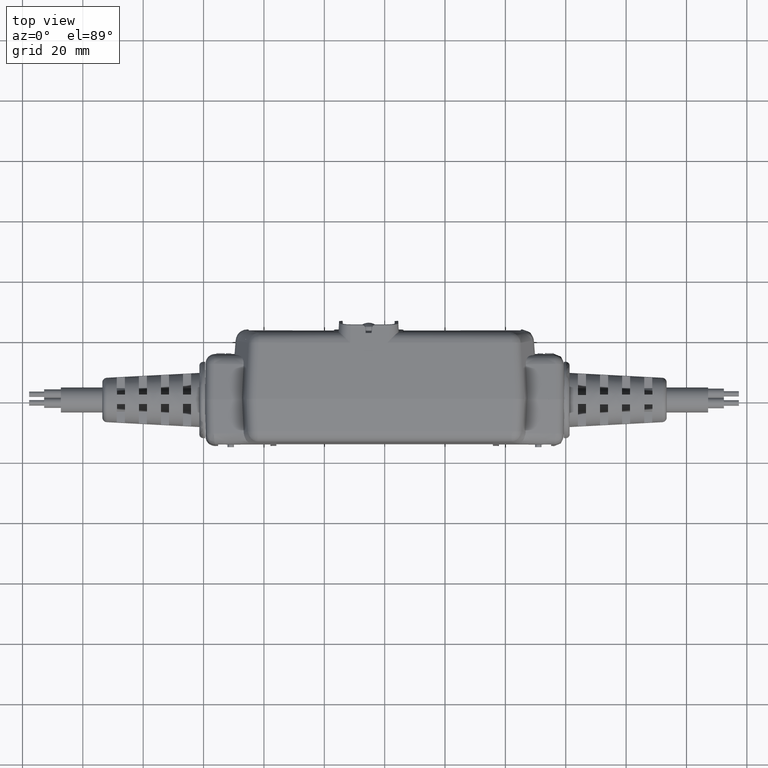
[diagram: clean part render]
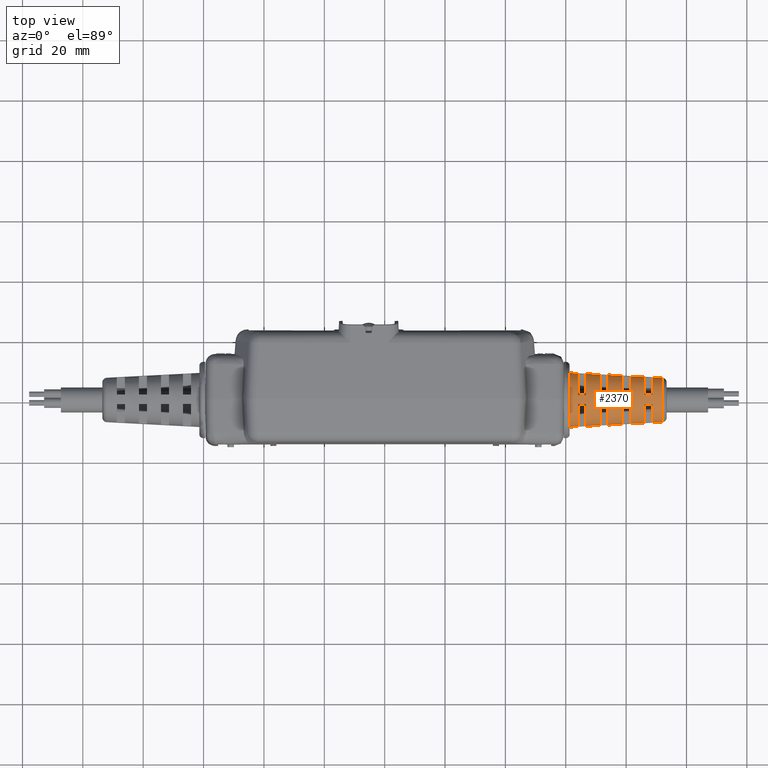
[diagram: same view with one face highlighted and labeled with its STEP entity id]
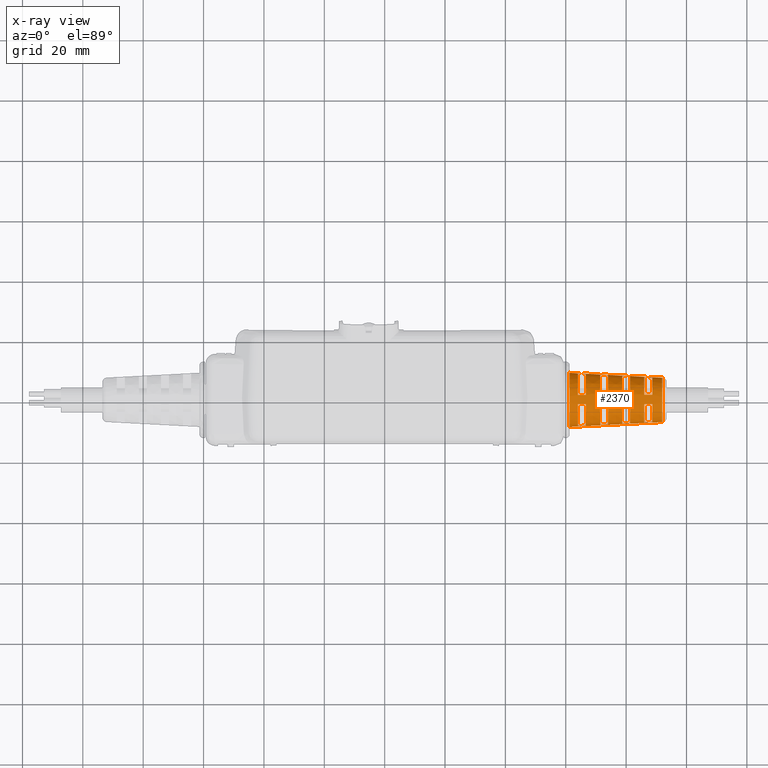
[diagram: x-ray of the same camera — body ghosted, the highlighted face saturated]
A machine part, top view. The second image highlights one B-rep face of the part: STEP entity #2370.
The next image is the same camera in x-ray: the body ghosted, the highlighted face saturated — about 0% of this face is hidden behind the body in this view.
In plain terms, the highlighted conical surface has half-angle 3 deg.
Its self-contained STEP definition (entity closure, byte-faithful):
#48 = CARTESIAN_POINT ( 'NONE',  ( 2.626074803149605952, 0.02195188560991327698, 5.902181154853083119E-16 ) ) ;
#217 = CARTESIAN_POINT ( 'NONE',  ( 3.385523622047243997, 0.02195188560991330126, -3.331255944365737550E-16 ) ) ;
#276 = DIRECTION ( 'NONE',  ( 0.000000000000000000, 1.000000000000000000, 5.370845286300962793E-18 ) ) ;
#423 = EDGE_CURVE ( 'NONE', #910, #15637, #10088, .T. ) ;
#434 = CARTESIAN_POINT ( 'NONE',  ( 3.385523622047243997, -0.04084338998063783560, 0.2953989048169199938 ) ) ;
#595 = CIRCLE ( 'NONE', #8810, 0.2964905952724240512 ) ;
#613 = VERTEX_POINT ( 'NONE', #16552 ) ;
#837 = AXIS2_PLACEMENT_3D ( 'NONE', #13288, #3886, #27090 ) ;
#882 = CARTESIAN_POINT ( 'NONE',  ( 3.202452759767177248, -0.2843680476511776245, 0.05708661417322907772 ) ) ;
#897 = CARTESIAN_POINT ( 'NONE',  ( 2.914263779527558551, -0.04084338998063784948, 0.3206054718941367954 ) ) ;
#910 = VERTEX_POINT ( 'NONE', #10158 ) ;
#984 = AXIS2_PLACEMENT_3D ( 'NONE', #7593, #5460, #14129 ) ;
#1035 = CARTESIAN_POINT ( 'NONE',  ( 3.202452754518295031, 0.08474716120046450751, 0.3052008135077254880 ) ) ;
#1126 = CARTESIAN_POINT ( 'NONE',  ( 2.896322480350852935, -0.3006740724700001643, 0.05708661417322901527 ) ) ;
#1273 = EDGE_CURVE ( 'NONE', #8569, #4271, #23755, .T. ) ;
#1431 = AXIS2_PLACEMENT_3D ( 'NONE', #7691, #14941, #5259 ) ;
#1492 = CARTESIAN_POINT ( 'NONE',  ( 2.626074803149605952, 0.3589515708192727028, 0.05708661417322892506 ) ) ;
#1497 = CARTESIAN_POINT ( 'NONE',  ( 2.413279527559054838, 0.3749046415154250189, 5.815717168840343192E-16 ) ) ;
#1620 = EDGE_CURVE ( 'NONE', #19480, #7408, #18230, .T. ) ;
#1664 = ORIENTED_EDGE ( 'NONE', *, *, #7114, .T. ) ;
#1715 = CARTESIAN_POINT ( 'NONE',  ( 2.843341803476631569, 0.3473971988524146015, 0.05708661417322897363 ) ) ;
#1807 = AXIS2_PLACEMENT_3D ( 'NONE', #20977, #7348, #276 ) ;
#1870 = EDGE_CURVE ( 'NONE', #4040, #12834, #18623, .T. ) ;
#2161 = CARTESIAN_POINT ( 'NONE',  ( 2.896322480350852935, 0.3445778436898266350, 0.05708661417322902915 ) ) ;
#2211 = ORIENTED_EDGE ( 'NONE', *, *, #423, .T. ) ;
#2370 = ADVANCED_FACE ( 'NONE', ( #22230, #7998, #17719, #3734, #29253, #29103, #13624, #20281, #8927 ), #11053, .T. ) ;
#2380 = EDGE_LOOP ( 'NONE', ( #1664, #18973, #23659, #9239 ) ) ;
#2519 = CARTESIAN_POINT ( 'NONE',  ( 3.490641703237432392, 0.3128948224031821712, 0.05708661417322914711 ) ) ;
#2580 = VERTEX_POINT ( 'NONE', #5985 ) ;
#2753 = VECTOR ( 'NONE', #11327, 39.37007874015748143 ) ;
#2791 = B_SPLINE_CURVE_WITH_KNOTS ( 'NONE', 3,
 ( #28367, #5293, #3048, #28526, #16968, #5575, #18972 ),
 .UNSPECIFIED., .F., .F.,
 ( 4, 3, 4 ),
 ( 0.004564592662278818720, 0.005848520266768853816, 0.007238381809362548665 ),
 .UNSPECIFIED. ) ;
#2825 = CARTESIAN_POINT ( 'NONE',  ( 2.608404758468685358, 0.3598908112224169509, 0.05708661417322895282 ) ) ;
#3048 = CARTESIAN_POINT ( 'NONE',  ( 3.130985799523999802, 0.3320809869180481599, 0.05708661417322904996 ) ) ;
#3189 = B_SPLINE_CURVE_WITH_KNOTS ( 'NONE', 3,
 ( #28755, #5520, #5225, #434 ),
 .UNSPECIFIED., .F., .F.,
 ( 4, 4 ),
 ( 0.01431265582675728121, 0.01698648894039770513 ),
 .UNSPECIFIED. ) ;
#3391 = CARTESIAN_POINT ( 'NONE',  ( 2.555996085075325386, -0.3187723603548476281, 0.05708661417322890425 ) ) ;
#3398 = CARTESIAN_POINT ( 'NONE',  ( 2.914263779527558551, 0.3436228879200250996, 0.05708661417322900139 ) ) ;
#3636 = CARTESIAN_POINT ( 'NONE',  ( 3.202452754518295031, -0.04084338998063784254, 0.3052008135077254880 ) ) ;
#3698 = VERTEX_POINT ( 'NONE', #1492 ) ;
#3713 = LINE ( 'NONE', #17852, #2753 ) ;
#3720 = CARTESIAN_POINT ( 'NONE',  ( 2.914263779527558551, -0.04084338998063784948, 0.3206054718941367954 ) ) ;
#3734 = FACE_BOUND ( 'NONE', #16963, .T. ) ;
#3817 = DIRECTION ( 'NONE',  ( -1.000000000000000000, -3.564050570092638275E-17, -2.526667914707950258E-16 ) ) ;
#3853 = EDGE_LOOP ( 'NONE', ( #12959, #16419, #27923, #17958 ) ) ;
#3886 = DIRECTION ( 'NONE',  ( 1.000000000000000000, 3.564050570092638275E-17, 2.526667914707950258E-16 ) ) ;
#3932 = CIRCLE ( 'NONE', #18491, 0.3322062905239770991 ) ;
#3933 = CARTESIAN_POINT ( 'NONE',  ( 2.809145669291337910, -0.04084338998063786336, 0.3262173705172797256 ) ) ;
#4040 = VERTEX_POINT ( 'NONE', #4421 ) ;
#4050 = EDGE_CURVE ( 'NONE', #14646, #7408, #13123, .T. ) ;
#4185 = VERTEX_POINT ( 'NONE', #26668 ) ;
#4206 = DIRECTION ( 'NONE',  ( -1.000000000000000000, -3.564050570092638275E-17, -2.526667914707950258E-16 ) ) ;
#4271 = VERTEX_POINT ( 'NONE', #25591 ) ;
#4292 = CARTESIAN_POINT ( 'NONE',  ( 3.621529553286976011, 0.02195188560991331167, 8.417364732568794891E-16 ) ) ;
#4373 = EDGE_LOOP ( 'NONE', ( #19758, #20406, #23711, #20314 ) ) ;
#4421 = CARTESIAN_POINT ( 'NONE',  ( 3.490641703237432392, -0.2689910511833555895, 0.05708661417322914711 ) ) ;
#4431 = EDGE_CURVE ( 'NONE', #4271, #6186, #18291, .T. ) ;
#4585 = CARTESIAN_POINT ( 'NONE',  ( 2.626074803149605952, -0.03789063407512605758, 0.3365212358629336431 ) ) ;
#5039 = AXIS2_PLACEMENT_3D ( 'NONE', #27031, #3817, #10966 ) ;
#5225 = CARTESIAN_POINT ( 'NONE',  ( 3.420563038083134000, -0.04084338998063778703, 0.2935215338091448634 ) ) ;
#5259 = DIRECTION ( 'NONE',  ( 0.000000000000000000, -1.000000000000000000, -5.370845286300814882E-18 ) ) ;
#5293 = CARTESIAN_POINT ( 'NONE',  ( 3.114160225923063852, 0.3329775491357575001, 0.05708661417322908466 ) ) ;
#5368 = CARTESIAN_POINT ( 'NONE',  ( 2.626074803149605952, -0.3150477995994456770, 0.05708661417322892506 ) ) ;
#5383 = CARTESIAN_POINT ( 'NONE',  ( 3.097334645669290953, 0.08474716120046450751, 0.3108231521124353303 ) ) ;
#5460 = DIRECTION ( 'NONE',  ( 1.000000000000000000, 3.564050570092638275E-17, 2.526667914707950258E-16 ) ) ;
#5501 = DIRECTION ( 'NONE',  ( 0.000000000000000000, -1.000000000000000000, -5.370845286300805637E-18 ) ) ;
#5520 = CARTESIAN_POINT ( 'NONE',  ( 3.455602412804182233, -0.04084338998063786336, 0.2916433915194030502 ) ) ;
#5575 = CARTESIAN_POINT ( 'NONE',  ( 3.184238970102238664, 0.3292427978268241406, 0.05708661417322909853 ) ) ;
#5700 = CARTESIAN_POINT ( 'NONE',  ( 2.809145669291337910, -0.04084338998063786336, 0.3262173705172797256 ) ) ;
#5763 = CARTESIAN_POINT ( 'NONE',  ( 2.809145669291337910, -0.3053127442325708762, 0.05708661417322897363 ) ) ;
#5846 = EDGE_CURVE ( 'NONE', #7063, #11022, #15443, .T. ) ;
#5985 = CARTESIAN_POINT ( 'NONE',  ( 2.914263779527558551, -0.2997191167001984624, 0.05708661417322900139 ) ) ;
#6186 = VERTEX_POINT ( 'NONE', #27542 ) ;
#6197 = CARTESIAN_POINT ( 'NONE',  ( 3.418626765165302395, 0.3167400482306491627, 0.05708661417322911935 ) ) ;
#6251 = EDGE_CURVE ( 'NONE', #24812, #28107, #18259, .T. ) ;
#6323 = DIRECTION ( 'NONE',  ( 0.000000000000000000, -1.000000000000000000, -5.370845286300814882E-18 ) ) ;
#6340 = DIRECTION ( 'NONE',  ( 0.000000000000000000, 1.000000000000000000, 5.370845286300653874E-18 ) ) ;
#6380 = DIRECTION ( 'NONE',  ( 1.000000000000000000, 3.564050570092638275E-17, 2.526667914707950258E-16 ) ) ;
#6410 = CARTESIAN_POINT ( 'NONE',  ( 3.202452759767177248, 0.3282718188710042062, 0.05708661417322907772 ) ) ;
#6523 = DIRECTION ( 'NONE',  ( 0.000000000000000000, 1.000000000000000000, 5.370845286300751711E-18 ) ) ;
#6624 = DIRECTION ( 'NONE',  ( 0.000000000000000000, 1.000000000000000000, 5.370845286300805637E-18 ) ) ;
#6834 = CARTESIAN_POINT ( 'NONE',  ( 3.202452755905511150, 0.02195188560991329779, 7.358496834826484065E-16 ) ) ;
#6854 = VERTEX_POINT ( 'NONE', #19075 ) ;
#6974 = CARTESIAN_POINT ( 'NONE',  ( 2.520956692913385311, -0.3206340173400767934, 0.05708661417322889731 ) ) ;
#7063 = VERTEX_POINT ( 'NONE', #16578 ) ;
#7114 = EDGE_CURVE ( 'NONE', #24812, #3698, #10223, .T. ) ;
#7348 = DIRECTION ( 'NONE',  ( 1.000000000000000000, 3.564050570092638275E-17, 2.526667914707950258E-16 ) ) ;
#7395 = EDGE_CURVE ( 'NONE', #2580, #19584, #27198, .T. ) ;
#7408 = VERTEX_POINT ( 'NONE', #19716 ) ;
#7492 = CARTESIAN_POINT ( 'NONE',  ( 2.555695337620218499, 0.3626920096729623344, 0.05708661417322890425 ) ) ;
#7593 = CARTESIAN_POINT ( 'NONE',  ( 2.809145669291337910, 0.02195188560991328044, 6.364740438451191992E-16 ) ) ;
#7657 = AXIS2_PLACEMENT_3D ( 'NONE', #13755, #4206, #6323 ) ;
#7691 = CARTESIAN_POINT ( 'NONE',  ( 2.413279527559054838, 0.02195188560991327004, 5.364518159617001705E-16 ) ) ;
#7931 = EDGE_CURVE ( 'NONE', #6854, #24005, #27571, .T. ) ;
#7944 = CARTESIAN_POINT ( 'NONE',  ( 2.520956692913385311, -0.3206340173400767934, 0.05708661417322889731 ) ) ;
#7998 = FACE_BOUND ( 'NONE', #26388, .T. ) ;
#8048 = ORIENTED_EDGE ( 'NONE', *, *, #17925, .T. ) ;
#8094 = CARTESIAN_POINT ( 'NONE',  ( 3.132374051356489719, 0.08474716120046450751, 0.3089497137651929237 ) ) ;
#8287 = CARTESIAN_POINT ( 'NONE',  ( 2.844185070486665357, -0.04084338998063782866, 0.3243473205878637522 ) ) ;
#8367 = ORIENTED_EDGE ( 'NONE', *, *, #15299, .F. ) ;
#8489 = CARTESIAN_POINT ( 'NONE',  ( 3.385523622047243997, 0.3185069025726440239, 0.05708661417322911935 ) ) ;
#8524 = CARTESIAN_POINT ( 'NONE',  ( 2.809145669291337910, 0.08474716120046449364, 0.3262173705172797256 ) ) ;
#8569 = VERTEX_POINT ( 'NONE', #22897 ) ;
#8706 = DIRECTION ( 'NONE',  ( 0.000000000000000000, 1.000000000000000000, 8.935492649864257044E-16 ) ) ;
#8756 = CARTESIAN_POINT ( 'NONE',  ( 3.455602412804182233, 0.08474716120046449364, 0.2916433915194030502 ) ) ;
#8810 = AXIS2_PLACEMENT_3D ( 'NONE', #9561, #18961, #16651 ) ;
#8849 = ORIENTED_EDGE ( 'NONE', *, *, #19445, .T. ) ;
#8927 = FACE_OUTER_BOUND ( 'NONE', #17629, .T. ) ;
#9139 = CARTESIAN_POINT ( 'NONE',  ( 3.490641743697204369, -0.04084338998063783560, 0.2897644320716417088 ) ) ;
#9239 = ORIENTED_EDGE ( 'NONE', *, *, #6251, .F. ) ;
#9244 = CARTESIAN_POINT ( 'NONE',  ( 3.385523622047243997, -0.2746031313528173312, 0.05708661417322911935 ) ) ;
#9545 = DIRECTION ( 'NONE',  ( 0.000000000000000000, 1.000000000000000000, 5.370845286300918882E-18 ) ) ;
#9561 = CARTESIAN_POINT ( 'NONE',  ( 3.490641732283463750, 0.02195188560991330820, 8.086654674813184046E-16 ) ) ;
#9633 = CIRCLE ( 'NONE', #18838, 0.3473096347897984271 ) ;
#9712 = CARTESIAN_POINT ( 'NONE',  ( 2.591035457884470095, 0.08179440529495271561, 0.3383863788046749255 ) ) ;
#9851 = CARTESIAN_POINT ( 'NONE',  ( 2.809145669291337910, -0.3053127442325708762, 0.05708661417322897363 ) ) ;
#9972 = VERTEX_POINT ( 'NONE', #25794 ) ;
#10088 = B_SPLINE_CURVE_WITH_KNOTS ( 'NONE', 3,
 ( #5368, #21442, #3391, #7944 ),
 .UNSPECIFIED., .F., .F.,
 ( 4, 4 ),
 ( 0.000000000000000000, 0.002673767520262207951 ),
 .UNSPECIFIED. ) ;
#10119 = DIRECTION ( 'NONE',  ( 0.000000000000000000, -1.000000000000000000, -5.370845286300918882E-18 ) ) ;
#10158 = CARTESIAN_POINT ( 'NONE',  ( 2.626074803149605952, -0.3150477995994456770, 0.05708661417322892506 ) ) ;
#10223 = B_SPLINE_CURVE_WITH_KNOTS ( 'NONE', 3,
 ( #14025, #28435, #7492, #16729, #20840, #2825, #12045 ),
 .UNSPECIFIED., .F., .F.,
 ( 4, 3, 4 ),
 ( 0.004072245444595262026, 0.005397654768774186665, 0.006746012964514574994 ),
 .UNSPECIFIED. ) ;
#10403 = CARTESIAN_POINT ( 'NONE',  ( 3.167413421650583150, 0.08474716120046450751, 0.3070756133206844485 ) ) ;
#10881 = CARTESIAN_POINT ( 'NONE',  ( 3.385523622047243997, 0.08474716120046450751, 0.2953989048169199938 ) ) ;
#10966 = DIRECTION ( 'NONE',  ( 0.000000000000000000, -1.000000000000000000, -5.370845286300751711E-18 ) ) ;
#11015 = AXIS2_PLACEMENT_3D ( 'NONE', #217, #23336, #21058 ) ;
#11022 = VERTEX_POINT ( 'NONE', #12334 ) ;
#11042 = CARTESIAN_POINT ( 'NONE',  ( 3.097334645669290953, 0.02195188560991329432, 7.092898278437891972E-16 ) ) ;
#11053 = CONICAL_SURFACE ( 'NONE', #7657, 0.3529527559055117836, 0.05235987755983004949 ) ;
#11201 = AXIS2_PLACEMENT_3D ( 'NONE', #20459, #13652, #29416 ) ;
#11212 = DIRECTION ( 'NONE',  ( 0.000000000000000000, -1.000000000000000000, -5.370845286300707029E-18 ) ) ;
#11237 = CARTESIAN_POINT ( 'NONE',  ( 2.860439861506308468, 0.3464873702248758569, 0.05708661417322898751 ) ) ;
#11318 = EDGE_CURVE ( 'NONE', #19584, #26675, #3932, .T. ) ;
#11327 = DIRECTION ( 'NONE',  ( -0.9986295347545738332, -0.05233595624294404280, -2.526016087383024834E-16 ) ) ;
#11704 = CARTESIAN_POINT ( 'NONE',  ( 2.591035457884470095, -0.03789063407512605758, 0.3383863788046749255 ) ) ;
#12045 = CARTESIAN_POINT ( 'NONE',  ( 2.626074803149605952, 0.3589515708192727028, 0.05708661417322892506 ) ) ;
#12219 = ORIENTED_EDGE ( 'NONE', *, *, #12997, .T. ) ;
#12334 = CARTESIAN_POINT ( 'NONE',  ( 2.809145669291337910, 0.08474716120046449364, 0.3262173705172797256 ) ) ;
#12396 = EDGE_LOOP ( 'NONE', ( #19628, #27092, #14487, #8048 ) ) ;
#12439 = CARTESIAN_POINT ( 'NONE',  ( 3.621529553286976011, 0.3115829408483472007, 7.301666641009245760E-16 ) ) ;
#12559 = ORIENTED_EDGE ( 'NONE', *, *, #7931, .F. ) ;
#12629 = DIRECTION ( 'NONE',  ( -1.000000000000000000, -3.564050570092638275E-17, -2.526667914707950258E-16 ) ) ;
#12824 = ORIENTED_EDGE ( 'NONE', *, *, #25751, .T. ) ;
#12834 = VERTEX_POINT ( 'NONE', #9244 ) ;
#12867 = AXIS2_PLACEMENT_3D ( 'NONE', #4292, #29933, #8706 ) ;
#12930 = VERTEX_POINT ( 'NONE', #15082 ) ;
#12959 = ORIENTED_EDGE ( 'NONE', *, *, #19338, .T. ) ;
#12997 = EDGE_CURVE ( 'NONE', #15413, #24005, #22210, .T. ) ;
#13003 = DIRECTION ( 'NONE',  ( 0.000000000000000000, -1.000000000000000000, -5.370845286300653874E-18 ) ) ;
#13123 = CIRCLE ( 'NONE', #21329, 0.3115939395382456567 ) ;
#13198 = CARTESIAN_POINT ( 'NONE',  ( 2.878381174282580890, 0.3455326699921857925, 0.05708661417322899445 ) ) ;
#13288 = CARTESIAN_POINT ( 'NONE',  ( 3.490641732283463750, 0.02195188560991330820, 8.086654674813184046E-16 ) ) ;
#13624 = FACE_BOUND ( 'NONE', #2380, .T. ) ;
#13629 = EDGE_LOOP ( 'NONE', ( #24306, #16052, #12824, #28059 ) ) ;
#13652 = DIRECTION ( 'NONE',  ( 1.000000000000000000, 3.564050570092632112E-17, -3.255743671881410339E-16 ) ) ;
#13755 = CARTESIAN_POINT ( 'NONE',  ( 2.413279527559054838, 0.02195188560991327004, 5.364518159617001705E-16 ) ) ;
#13769 = AXIS2_PLACEMENT_3D ( 'NONE', #19535, #22234, #13003 ) ;
#13815 = ORIENTED_EDGE ( 'NONE', *, *, #26128, .F. ) ;
#13822 = CARTESIAN_POINT ( 'NONE',  ( 2.555996087393977323, -0.03789063407512603676, 0.3402510479070747773 ) ) ;
#14025 = CARTESIAN_POINT ( 'NONE',  ( 2.520956692913385311, 0.3645377885599033196, 0.05708661417322889731 ) ) ;
#14092 = CARTESIAN_POINT ( 'NONE',  ( 2.555996087393977323, 0.08179440529495268786, 0.3402510479070747773 ) ) ;
#14125 = CARTESIAN_POINT ( 'NONE',  ( 2.520956692913385311, 0.02195188560991327351, 5.636582598464492011E-16 ) ) ;
#14129 = DIRECTION ( 'NONE',  ( 0.000000000000000000, 1.000000000000000000, 5.370845286300707029E-18 ) ) ;
#14144 = CIRCLE ( 'NONE', #20911, 0.3171029462581558267 ) ;
#14234 = CARTESIAN_POINT ( 'NONE',  ( 2.626074803149605952, 0.08179440529495268786, 0.3365212358629336431 ) ) ;
#14259 = VERTEX_POINT ( 'NONE', #2519 ) ;
#14487 = ORIENTED_EDGE ( 'NONE', *, *, #26878, .F. ) ;
#14513 = VERTEX_POINT ( 'NONE', #9139 ) ;
#14632 = CARTESIAN_POINT ( 'NONE',  ( 3.132374046423807901, -0.2881033775770672212, 0.05708661417322904996 ) ) ;
#14640 = CARTESIAN_POINT ( 'NONE',  ( 2.626074803149605952, 0.02195188560991327698, 5.902181154853083119E-16 ) ) ;
#14646 = VERTEX_POINT ( 'NONE', #25791 ) ;
#14663 = CARTESIAN_POINT ( 'NONE',  ( 2.879224441119970113, -0.04084338998063786336, 0.3224766979157941971 ) ) ;
#14766 = CARTESIAN_POINT ( 'NONE',  ( 2.879224441119970113, 0.08474716120046449364, 0.3224766979157943636 ) ) ;
#14854 = EDGE_CURVE ( 'NONE', #14513, #4185, #3189, .T. ) ;
#14938 = DIRECTION ( 'NONE',  ( -0.9986295347545738332, 0.05233595624294397342, -2.456301259611957908E-16 ) ) ;
#14941 = DIRECTION ( 'NONE',  ( -1.000000000000000000, -3.564050570092638275E-17, -2.526667914707950258E-16 ) ) ;
#15066 = EDGE_CURVE ( 'NONE', #14646, #25833, #26335, .T. ) ;
#15082 = CARTESIAN_POINT ( 'NONE',  ( 2.914263779527558551, 0.08474716120046450751, 0.3206054718941367954 ) ) ;
#15210 = CARTESIAN_POINT ( 'NONE',  ( 3.097334645669290953, -0.2899702152547736222, 0.05708661417322904302 ) ) ;
#15299 = EDGE_CURVE ( 'NONE', #22571, #21685, #18142, .T. ) ;
#15400 = B_SPLINE_CURVE_WITH_KNOTS ( 'NONE', 3,
 ( #21199, #14092, #9712, #14234 ),
 .UNSPECIFIED., .F., .F.,
 ( 4, 4 ),
 ( 0.01614936260241600294, 0.01882314065659024260 ),
 .UNSPECIFIED. ) ;
#15413 = VERTEX_POINT ( 'NONE', #12439 ) ;
#15443 = CIRCLE ( 'NONE', #984, 0.3322062905239770991 ) ;
#15478 = CIRCLE ( 'NONE', #24190, 0.3266972838040668736 ) ;
#15620 = EDGE_CURVE ( 'NONE', #28107, #21656, #15400, .T. ) ;
#15633 = CARTESIAN_POINT ( 'NONE',  ( 2.626074803149605952, 0.08179440529495268786, 0.3365212358629336431 ) ) ;
#15637 = VERTEX_POINT ( 'NONE', #6974 ) ;
#15692 = CIRCLE ( 'NONE', #13769, 0.3266972838040668736 ) ;
#16052 = ORIENTED_EDGE ( 'NONE', *, *, #1870, .T. ) ;
#16095 = DIRECTION ( 'NONE',  ( 0.000000000000000000, -1.000000000000000000, -5.370845286300962793E-18 ) ) ;
#16124 = B_SPLINE_CURVE_WITH_KNOTS ( 'NONE', 3,
 ( #24994, #27605, #1715, #11237, #13198, #2161, #22270 ),
 .UNSPECIFIED., .F., .F.,
 ( 4, 3, 4 ),
 ( 0.004278539691087743929, 0.005583254988275264744, 0.006952317205210082826 ),
 .UNSPECIFIED. ) ;
#16126 = CARTESIAN_POINT ( 'NONE',  ( 3.202452754518295031, 0.08474716120046450751, 0.3052008135077254880 ) ) ;
#16419 = ORIENTED_EDGE ( 'NONE', *, *, #29291, .F. ) ;
#16450 = VERTEX_POINT ( 'NONE', #897 ) ;
#16552 = CARTESIAN_POINT ( 'NONE',  ( 2.520956692913385311, -0.03789063407512605758, 0.3421152660370029297 ) ) ;
#16578 = CARTESIAN_POINT ( 'NONE',  ( 2.809145669291337910, 0.3492165154523975135, 0.05708661417322897363 ) ) ;
#16651 = DIRECTION ( 'NONE',  ( 0.000000000000000000, -1.000000000000000000, -5.370845286300866496E-18 ) ) ;
#16667 = EDGE_CURVE ( 'NONE', #19480, #25833, #14144, .T. ) ;
#16700 = CARTESIAN_POINT ( 'NONE',  ( 3.621529553286976011, -0.2676791696285205635, 6.873685354927218632E-16 ) ) ;
#16707 = ORIENTED_EDGE ( 'NONE', *, *, #23133, .F. ) ;
#16729 = CARTESIAN_POINT ( 'NONE',  ( 2.573064651835245797, 0.3617689670772226695, 0.05708661417322891812 ) ) ;
#16963 = EDGE_LOOP ( 'NONE', ( #8849, #2211, #22900, #24900 ) ) ;
#16968 = CARTESIAN_POINT ( 'NONE',  ( 3.166025172199770310, 0.3302136222732925952, 0.05708661417322907078 ) ) ;
#17081 = ORIENTED_EDGE ( 'NONE', *, *, #16667, .T. ) ;
#17138 = VERTEX_POINT ( 'NONE', #22122 ) ;
#17170 = CARTESIAN_POINT ( 'NONE',  ( 2.520956692913385311, 0.08179440529495268786, 0.3421152660370029297 ) ) ;
#17314 = AXIS2_PLACEMENT_3D ( 'NONE', #11042, #20278, #6624 ) ;
#17438 = CARTESIAN_POINT ( 'NONE',  ( 3.472153920400578020, 0.3138822009672473379, 0.05708661417322918180 ) ) ;
#17554 = VERTEX_POINT ( 'NONE', #16700 ) ;
#17629 = EDGE_LOOP ( 'NONE', ( #25249, #12219, #12559, #13815 ) ) ;
#17651 = ORIENTED_EDGE ( 'NONE', *, *, #15066, .F. ) ;
#17719 = FACE_BOUND ( 'NONE', #13629, .T. ) ;
#17849 = EDGE_CURVE ( 'NONE', #9972, #21685, #2791, .T. ) ;
#17852 = CARTESIAN_POINT ( 'NONE',  ( 2.413279527559054838, -0.3310008702955985482, 5.345561613163581449E-16 ) ) ;
#17925 = EDGE_CURVE ( 'NONE', #16450, #2580, #15478, .T. ) ;
#17958 = ORIENTED_EDGE ( 'NONE', *, *, #1273, .F. ) ;
#18142 = CIRCLE ( 'NONE', #5039, 0.3115939395382456567 ) ;
#18230 = B_SPLINE_CURVE_WITH_KNOTS ( 'NONE', 3,
 ( #15210, #14632, #23863, #882 ),
 .UNSPECIFIED., .F., .F.,
 ( 4, 4 ),
 ( 0.000000000000000000, 0.002673789147832137791 ),
 .UNSPECIFIED. ) ;
#18259 = CIRCLE ( 'NONE', #1807, 0.3473096347897984271 ) ;
#18290 = ORIENTED_EDGE ( 'NONE', *, *, #4050, .T. ) ;
#18291 = B_SPLINE_CURVE_WITH_KNOTS ( 'NONE', 3,
 ( #10881, #24633, #8756, #25257 ),
 .UNSPECIFIED., .F., .F.,
 ( 4, 4 ),
 ( 0.01457859515390049973, 0.01725242827885833941 ),
 .UNSPECIFIED. ) ;
#18366 = CARTESIAN_POINT ( 'NONE',  ( 3.097334645669290953, -0.2899702152547736222, 0.05708661417322904302 ) ) ;
#18491 = AXIS2_PLACEMENT_3D ( 'NONE', #22698, #29724, #11212 ) ;
#18623 = B_SPLINE_CURVE_WITH_KNOTS ( 'NONE', 3,
 ( #23526, #19025, #20667, #20965 ),
 .UNSPECIFIED., .F., .F.,
 ( 4, 4 ),
 ( 0.000000000000000000, 0.002673801724296943558 ),
 .UNSPECIFIED. ) ;
#18778 = VERTEX_POINT ( 'NONE', #27098 ) ;
#18838 = AXIS2_PLACEMENT_3D ( 'NONE', #14125, #23353, #16095 ) ;
#18845 = CIRCLE ( 'NONE', #26097, 0.3418006280698881461 ) ;
#18961 = DIRECTION ( 'NONE',  ( -1.000000000000000000, -3.564050570092638275E-17, -2.526667914707950258E-16 ) ) ;
#18972 = CARTESIAN_POINT ( 'NONE',  ( 3.202452759767177248, 0.3282718188710042062, 0.05708661417322907772 ) ) ;
#18973 = ORIENTED_EDGE ( 'NONE', *, *, #21344, .F. ) ;
#19025 = CARTESIAN_POINT ( 'NONE',  ( 3.455602377805194969, -0.2708623993669860286, 0.05708661417322914017 ) ) ;
#19056 = EDGE_CURVE ( 'NONE', #11022, #12930, #21172, .T. ) ;
#19071 = VERTEX_POINT ( 'NONE', #3398 ) ;
#19075 = CARTESIAN_POINT ( 'NONE',  ( 2.413279527559054838, -0.3310008702955985482, 5.345561613163581449E-16 ) ) ;
#19338 = EDGE_CURVE ( 'NONE', #8569, #14259, #23633, .T. ) ;
#19445 = EDGE_CURVE ( 'NONE', #18778, #910, #18845, .T. ) ;
#19480 = VERTEX_POINT ( 'NONE', #18366 ) ;
#19535 = CARTESIAN_POINT ( 'NONE',  ( 2.914263779527558551, 0.02195188560991328391, 6.630338994839783099E-16 ) ) ;
#19578 = CARTESIAN_POINT ( 'NONE',  ( 2.826243739353848206, -0.3044031417616101520, 0.05708661417322900139 ) ) ;
#19584 = VERTEX_POINT ( 'NONE', #9851 ) ;
#19628 = ORIENTED_EDGE ( 'NONE', *, *, #7395, .T. ) ;
#19716 = CARTESIAN_POINT ( 'NONE',  ( 3.202452759767177248, -0.2843680476511776245, 0.05708661417322907772 ) ) ;
#19758 = ORIENTED_EDGE ( 'NONE', *, *, #28359, .T. ) ;
#20139 = CARTESIAN_POINT ( 'NONE',  ( 2.914263779527558551, 0.02195188560991328391, 6.630338994839783099E-16 ) ) ;
#20171 = CARTESIAN_POINT ( 'NONE',  ( 3.097334645669290953, -0.04084338998063784948, 0.3108231521124353303 ) ) ;
#20278 = DIRECTION ( 'NONE',  ( 1.000000000000000000, 3.564050570092638275E-17, 2.526667914707950258E-16 ) ) ;
#20281 = FACE_BOUND ( 'NONE', #3853, .T. ) ;
#20314 = ORIENTED_EDGE ( 'NONE', *, *, #5846, .F. ) ;
#20406 = ORIENTED_EDGE ( 'NONE', *, *, #21072, .F. ) ;
#20459 = CARTESIAN_POINT ( 'NONE',  ( 3.385523622047243997, 0.02195188560991330126, 7.729537147291759546E-16 ) ) ;
#20482 = CARTESIAN_POINT ( 'NONE',  ( 2.844185070486665357, 0.08474716120046449364, 0.3243473205878635302 ) ) ;
#20667 = CARTESIAN_POINT ( 'NONE',  ( 3.420563016734965434, -0.2727330803672317061, 0.05708661417322912629 ) ) ;
#20840 = CARTESIAN_POINT ( 'NONE',  ( 2.590734707982180751, 0.3608299424104560171, 0.05708661417322892506 ) ) ;
#20911 = AXIS2_PLACEMENT_3D ( 'NONE', #23686, #12629, #5501 ) ;
#20938 = CARTESIAN_POINT ( 'NONE',  ( 2.520956692913385311, -0.03789063407512605758, 0.3421152660370029297 ) ) ;
#20965 = CARTESIAN_POINT ( 'NONE',  ( 3.385523622047243997, -0.2746031313528173312, 0.05708661417322911935 ) ) ;
#20977 = CARTESIAN_POINT ( 'NONE',  ( 2.520956692913385311, 0.02195188560991327351, 5.636582598464492011E-16 ) ) ;
#21013 = B_SPLINE_CURVE_WITH_KNOTS ( 'NONE', 3,
 ( #5383, #8094, #10403, #1035 ),
 .UNSPECIFIED., .F., .F.,
 ( 4, 4 ),
 ( 0.01530768729493700055, 0.01798150361759525556 ),
 .UNSPECIFIED. ) ;
#21058 = DIRECTION ( 'NONE',  ( 0.000000000000000000, 9.893916162002531690E-17, 1.000000000000000000 ) ) ;
#21060 = AXIS2_PLACEMENT_3D ( 'NONE', #14640, #21894, #10119 ) ;
#21072 = EDGE_CURVE ( 'NONE', #12930, #19071, #15692, .T. ) ;
#21172 = B_SPLINE_CURVE_WITH_KNOTS ( 'NONE', 3,
 ( #8524, #20482, #14766, #25018 ),
 .UNSPECIFIED., .F., .F.,
 ( 4, 4 ),
 ( 0.01659822179200024991, 0.01927202400062186932 ),
 .UNSPECIFIED. ) ;
#21199 = CARTESIAN_POINT ( 'NONE',  ( 2.520956692913385311, 0.08179440529495268786, 0.3421152660370029297 ) ) ;
#21329 = AXIS2_PLACEMENT_3D ( 'NONE', #6834, #6380, #6523 ) ;
#21344 = EDGE_CURVE ( 'NONE', #21656, #3698, #21521, .T. ) ;
#21442 = CARTESIAN_POINT ( 'NONE',  ( 2.591035455525148468, -0.3169102946628711281, 0.05708661417322891812 ) ) ;
#21521 = CIRCLE ( 'NONE', #21060, 0.3418006280698881461 ) ;
#21648 = CIRCLE ( 'NONE', #17314, 0.3171029462581558267 ) ;
#21656 = VERTEX_POINT ( 'NONE', #15633 ) ;
#21665 = VECTOR ( 'NONE', #14938, 39.37007874015748143 ) ;
#21685 = VERTEX_POINT ( 'NONE', #6410 ) ;
#21697 = ORIENTED_EDGE ( 'NONE', *, *, #1620, .F. ) ;
#21894 = DIRECTION ( 'NONE',  ( -1.000000000000000000, -3.564050570092638275E-17, -2.526667914707950258E-16 ) ) ;
#21953 = CARTESIAN_POINT ( 'NONE',  ( 3.435178325259467869, 0.3158564062930286354, 0.05708661417322912629 ) ) ;
#22093 = CARTESIAN_POINT ( 'NONE',  ( 3.453666127640486749, 0.3148693937440383839, 0.05708661417322914017 ) ) ;
#22122 = CARTESIAN_POINT ( 'NONE',  ( 3.097334645669290953, 0.08474716120046450751, 0.3108231521124353303 ) ) ;
#22210 = LINE ( 'NONE', #1497, #21665 ) ;
#22230 = FACE_BOUND ( 'NONE', #12396, .T. ) ;
#22234 = DIRECTION ( 'NONE',  ( -1.000000000000000000, -3.564050570092638275E-17, -2.526667914707950258E-16 ) ) ;
#22270 = CARTESIAN_POINT ( 'NONE',  ( 2.914263779527558551, 0.3436228879200250996, 0.05708661417322900139 ) ) ;
#22408 = CARTESIAN_POINT ( 'NONE',  ( 3.490641703237432392, 0.3128948224031821712, 0.05708661417322914711 ) ) ;
#22571 = VERTEX_POINT ( 'NONE', #16126 ) ;
#22698 = CARTESIAN_POINT ( 'NONE',  ( 2.809145669291337910, 0.02195188560991328044, 6.364740438451191992E-16 ) ) ;
#22728 = CARTESIAN_POINT ( 'NONE',  ( 3.132374051356488831, -0.04084338998063782172, 0.3089497137651932013 ) ) ;
#22897 = CARTESIAN_POINT ( 'NONE',  ( 3.385523622047243997, 0.3185069025726440239, 0.05708661417322911935 ) ) ;
#22900 = ORIENTED_EDGE ( 'NONE', *, *, #23673, .T. ) ;
#23015 = DIRECTION ( 'NONE',  ( 1.000000000000000000, 3.564050570092638275E-17, 2.526667914707950258E-16 ) ) ;
#23133 = EDGE_CURVE ( 'NONE', #9972, #17138, #21648, .T. ) ;
#23336 = DIRECTION ( 'NONE',  ( -1.000000000000000000, -3.564050570092632112E-17, 3.255743671881410339E-16 ) ) ;
#23353 = DIRECTION ( 'NONE',  ( -1.000000000000000000, -3.564050570092638275E-17, -2.526667914707950258E-16 ) ) ;
#23355 = EDGE_CURVE ( 'NONE', #17138, #22571, #21013, .T. ) ;
#23526 = CARTESIAN_POINT ( 'NONE',  ( 3.490641703237432392, -0.2689910511833555895, 0.05708661417322914711 ) ) ;
#23633 = B_SPLINE_CURVE_WITH_KNOTS ( 'NONE', 3,
 ( #8489, #26979, #6197, #21953, #22093, #17438, #22408 ),
 .UNSPECIFIED., .F., .F.,
 ( 4, 3, 4 ),
 ( 0.004956643244563330684, 0.006219668219102619106, 0.007630444967668867026 ),
 .UNSPECIFIED. ) ;
#23659 = ORIENTED_EDGE ( 'NONE', *, *, #15620, .F. ) ;
#23662 = CARTESIAN_POINT ( 'NONE',  ( 2.914263779527558551, -0.2997191167001984624, 0.05708661417322900139 ) ) ;
#23673 = EDGE_CURVE ( 'NONE', #15637, #613, #9633, .T. ) ;
#23686 = CARTESIAN_POINT ( 'NONE',  ( 3.097334645669290953, 0.02195188560991329432, 7.092898278437891972E-16 ) ) ;
#23711 = ORIENTED_EDGE ( 'NONE', *, *, #19056, .F. ) ;
#23730 = EDGE_CURVE ( 'NONE', #18778, #613, #26793, .T. ) ;
#23755 = CIRCLE ( 'NONE', #11201, 0.3019996019923342212 ) ;
#23759 = CARTESIAN_POINT ( 'NONE',  ( 2.413279527559054838, 0.3749046415154250189, 5.815717168840343192E-16 ) ) ;
#23863 = CARTESIAN_POINT ( 'NONE',  ( 3.167413418336115782, -0.2862359984610435837, 0.05708661417322907078 ) ) ;
#24005 = VERTEX_POINT ( 'NONE', #23759 ) ;
#24190 = AXIS2_PLACEMENT_3D ( 'NONE', #20139, #27132, #6340 ) ;
#24306 = ORIENTED_EDGE ( 'NONE', *, *, #26193, .T. ) ;
#24424 = ORIENTED_EDGE ( 'NONE', *, *, #23355, .F. ) ;
#24483 = CIRCLE ( 'NONE', #837, 0.2964905952724239957 ) ;
#24633 = CARTESIAN_POINT ( 'NONE',  ( 3.420563038083134000, 0.08474716120046447976, 0.2935215338091448078 ) ) ;
#24703 = CARTESIAN_POINT ( 'NONE',  ( 3.167413421650581373, -0.04084338998063784948, 0.3070756133206845595 ) ) ;
#24720 = EDGE_CURVE ( 'NONE', #17554, #15413, #28396, .T. ) ;
#24812 = VERTEX_POINT ( 'NONE', #28697 ) ;
#24846 = B_SPLINE_CURVE_WITH_KNOTS ( 'NONE', 3,
 ( #3720, #14663, #8287, #5700 ),
 .UNSPECIFIED., .F., .F.,
 ( 4, 4 ),
 ( 0.01674566827069329938, 0.01941947047497184428 ),
 .UNSPECIFIED. ) ;
#24900 = ORIENTED_EDGE ( 'NONE', *, *, #23730, .F. ) ;
#24994 = CARTESIAN_POINT ( 'NONE',  ( 2.809145669291337910, 0.3492165154523975135, 0.05708661417322897363 ) ) ;
#25018 = CARTESIAN_POINT ( 'NONE',  ( 2.914263779527558551, 0.08474716120046450751, 0.3206054718941367954 ) ) ;
#25249 = ORIENTED_EDGE ( 'NONE', *, *, #24720, .T. ) ;
#25257 = CARTESIAN_POINT ( 'NONE',  ( 3.490641743697204369, 0.08474716120046450751, 0.2897644320716417088 ) ) ;
#25591 = CARTESIAN_POINT ( 'NONE',  ( 3.385523622047243997, 0.08474716120046450751, 0.2953989048169199938 ) ) ;
#25607 = ORIENTED_EDGE ( 'NONE', *, *, #17849, .T. ) ;
#25751 = EDGE_CURVE ( 'NONE', #12834, #4185, #29433, .T. ) ;
#25791 = CARTESIAN_POINT ( 'NONE',  ( 3.202452754518295031, -0.04084338998063784254, 0.3052008135077254880 ) ) ;
#25794 = CARTESIAN_POINT ( 'NONE',  ( 3.097334645669290953, 0.3338739864746002595, 0.05708661417322904302 ) ) ;
#25833 = VERTEX_POINT ( 'NONE', #28959 ) ;
#26097 = AXIS2_PLACEMENT_3D ( 'NONE', #48, #23015, #9545 ) ;
#26128 = EDGE_CURVE ( 'NONE', #17554, #6854, #3713, .T. ) ;
#26193 = EDGE_CURVE ( 'NONE', #14513, #4040, #24483, .T. ) ;
#26335 = B_SPLINE_CURVE_WITH_KNOTS ( 'NONE', 3,
 ( #3636, #24703, #22728, #20171 ),
 .UNSPECIFIED., .F., .F.,
 ( 4, 4 ),
 ( 0.01504174799183080613, 0.01771556430545210767 ),
 .UNSPECIFIED. ) ;
#26388 = EDGE_LOOP ( 'NONE', ( #18290, #21697, #17081, #17651 ) ) ;
#26403 = CARTESIAN_POINT ( 'NONE',  ( 2.843341803476631569, -0.3034934276325879643, 0.05708661417322898751 ) ) ;
#26668 = CARTESIAN_POINT ( 'NONE',  ( 3.385523622047243997, -0.04084338998063783560, 0.2953989048169199938 ) ) ;
#26675 = VERTEX_POINT ( 'NONE', #3933 ) ;
#26709 = CARTESIAN_POINT ( 'NONE',  ( 2.860439861506308468, -0.3025835990050491642, 0.05708661417322898751 ) ) ;
#26793 = B_SPLINE_CURVE_WITH_KNOTS ( 'NONE', 3,
 ( #4585, #11704, #13822, #20938 ),
 .UNSPECIFIED., .F., .F.,
 ( 4, 4 ),
 ( 0.01618516194397240024, 0.01885893999337938040 ),
 .UNSPECIFIED. ) ;
#26878 = EDGE_CURVE ( 'NONE', #16450, #26675, #24846, .T. ) ;
#26979 = CARTESIAN_POINT ( 'NONE',  ( 3.402075197358366943, 0.3176235457110480609, 0.05708661417322916098 ) ) ;
#27031 = CARTESIAN_POINT ( 'NONE',  ( 3.202452755905511150, 0.02195188560991329779, 7.358496834826484065E-16 ) ) ;
#27090 = DIRECTION ( 'NONE',  ( 0.000000000000000000, 1.000000000000000000, 5.370845286300867267E-18 ) ) ;
#27092 = ORIENTED_EDGE ( 'NONE', *, *, #11318, .T. ) ;
#27098 = CARTESIAN_POINT ( 'NONE',  ( 2.626074803149605952, -0.03789063407512605758, 0.3365212358629336431 ) ) ;
#27132 = DIRECTION ( 'NONE',  ( 1.000000000000000000, 3.564050570092638275E-17, 2.526667914707950258E-16 ) ) ;
#27198 = B_SPLINE_CURVE_WITH_KNOTS ( 'NONE', 3,
 ( #23662, #1126, #28398, #26709, #26403, #19578, #5763 ),
 .UNSPECIFIED., .F., .F.,
 ( 4, 3, 4 ),
 ( 0.004214192771752523284, 0.005583254988606196206, 0.006887970285716386518 ),
 .UNSPECIFIED. ) ;
#27542 = CARTESIAN_POINT ( 'NONE',  ( 3.490641743697204369, 0.08474716120046450751, 0.2897644320716417088 ) ) ;
#27571 = CIRCLE ( 'NONE', #1431, 0.3529527559055117836 ) ;
#27605 = CARTESIAN_POINT ( 'NONE',  ( 2.826243739353848206, 0.3483069129814366782, 0.05708661417322901527 ) ) ;
#27923 = ORIENTED_EDGE ( 'NONE', *, *, #4431, .F. ) ;
#28059 = ORIENTED_EDGE ( 'NONE', *, *, #14854, .F. ) ;
#28107 = VERTEX_POINT ( 'NONE', #17170 ) ;
#28359 = EDGE_CURVE ( 'NONE', #7063, #19071, #16124, .T. ) ;
#28367 = CARTESIAN_POINT ( 'NONE',  ( 3.097334645669290953, 0.3338739864746002595, 0.05708661417322904302 ) ) ;
#28396 = CIRCLE ( 'NONE', #12867, 0.2896310552384338544 ) ;
#28398 = CARTESIAN_POINT ( 'NONE',  ( 2.878381174282580890, -0.3016288987723591553, 0.05708661417322899445 ) ) ;
#28435 = CARTESIAN_POINT ( 'NONE',  ( 2.538326017935158330, 0.3636149493420868239, 0.05708661417322893894 ) ) ;
#28526 = CARTESIAN_POINT ( 'NONE',  ( 3.147811366294102076, 0.3311842965347699952, 0.05708661417322906384 ) ) ;
#28697 = CARTESIAN_POINT ( 'NONE',  ( 2.520956692913385311, 0.3645377885599033196, 0.05708661417322889731 ) ) ;
#28755 = CARTESIAN_POINT ( 'NONE',  ( 3.490641743697204369, -0.04084338998063783560, 0.2897644320716417088 ) ) ;
#28825 = EDGE_LOOP ( 'NONE', ( #25607, #8367, #24424, #16707 ) ) ;
#28959 = CARTESIAN_POINT ( 'NONE',  ( 3.097334645669290953, -0.04084338998063784948, 0.3108231521124353303 ) ) ;
#29103 = FACE_BOUND ( 'NONE', #4373, .T. ) ;
#29253 = FACE_BOUND ( 'NONE', #28825, .T. ) ;
#29291 = EDGE_CURVE ( 'NONE', #6186, #14259, #595, .T. ) ;
#29416 = DIRECTION ( 'NONE',  ( 0.000000000000000000, -9.893916162002531690E-17, -1.000000000000000000 ) ) ;
#29433 = CIRCLE ( 'NONE', #11015, 0.3019996019923342212 ) ;
#29724 = DIRECTION ( 'NONE',  ( -1.000000000000000000, -3.564050570092638275E-17, -2.526667914707950258E-16 ) ) ;
#29933 = DIRECTION ( 'NONE',  ( -1.000000000000000000, -3.564050570092638275E-17, -2.526667914707950258E-16 ) ) ;